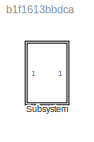
MODEL slx_b1f1613bbdca
KIND model
CONFIG AbsTol = auto
CONFIG EnableMultiTasking = off
CONFIG FixedStep = auto
CONFIG MaxStep = auto
CONFIG MinStep = auto
CONFIG RelTol = 1e-3
CONFIG SampleTimeConstraint = Unconstrained
CONFIG Solver = VariableStepAuto
CONFIG SolverName = VariableStepAuto
CONFIG StartTime = 0.0
CONFIG StopTime = 30
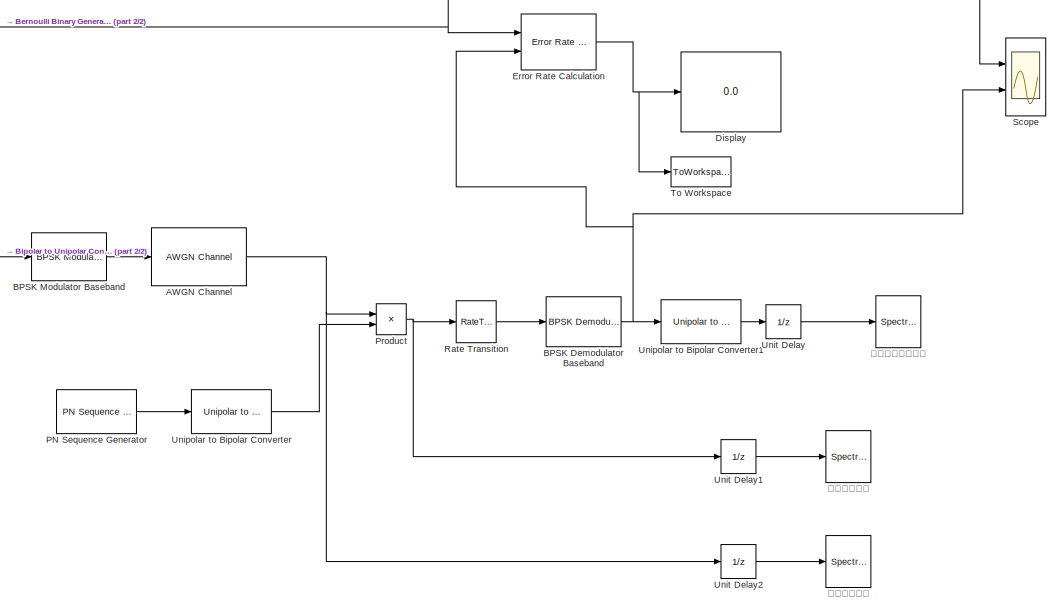
[diagram: Subsystem - part 1/2, right side, full height]
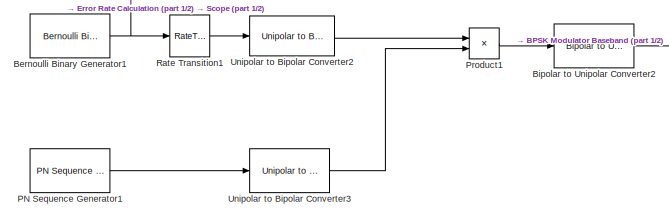
[diagram: Subsystem - part 2/2, middle left region]
BLOCK [SubSystem] Subsystem
  Ports = []
  RequestExecContextInheritance = off
BLOCK [Reference] Subsystem/AWGN Channel  REF=commchan3/AWGN
Channel
  Ports = [1, 1]
  SourceBlock = commchan3/AWGN\nChannel
  SourceProductBaseCode = CM
  SourceProductName = Communications System Toolbox
  SourceType = AWGN Channel
  UserDataPersistent = on
BLOCK [Reference] Subsystem/BPSK Demodulator Baseband  REF=commdigbbndpm3/BPSK
Demodulator
Baseband
  Ports = [1, 1]
  SourceBlock = commdigbbndpm3/BPSK\nDemodulator\nBaseband
  SourceProductBaseCode = CM
  SourceProductName = Communications System Toolbox
  SourceType = BPSK Demodulator Baseband
BLOCK [Reference] Subsystem/BPSK Modulator Baseband  REF=commdigbbndpm3/BPSK
Modulator
Baseband
  Ports = [1, 1]
  SourceBlock = commdigbbndpm3/BPSK\nModulator\nBaseband
  SourceProductBaseCode = CM
  SourceProductName = Communications System Toolbox
  SourceType = BPSK Modulator Baseband
BLOCK [Reference] Subsystem/Bernoulli Binary Generator1  REF=commrandsrc3/Bernoulli Binary
Generator
  Ports = [0, 1]
  SourceBlock = commrandsrc3/Bernoulli Binary\nGenerator
  SourceProductBaseCode = CM
  SourceProductName = Communications System Toolbox
  SourceType = Bernoulli Binary Generator
BLOCK [Reference] Subsystem/Bipolar to Unipolar Converter2  REF=commutil2/Bipolar to
Unipolar
Converter
  Ports = [1, 1]
  SourceBlock = commutil2/Bipolar to\nUnipolar\nConverter
  SourceProductBaseCode = CM
  SourceProductName = Communications System Toolbox
  SourceType = Bipolar to Unipolar Converter
BLOCK [Display] Subsystem/Display
  Decimation = 1
  Ports = [1]
BLOCK [Reference] Subsystem/Error Rate Calculation  REF=commsink2/Error Rate
Calculation
  Ports = [2, 1]
  SourceBlock = commsink2/Error Rate\nCalculation
  SourceProductBaseCode = CM
  SourceProductName = Communications System Toolbox
  SourceType = Error Rate Calculation
BLOCK [Reference] Subsystem/PN Sequence Generator  REF=commseqgen3/PN Sequence
Generator
  Ports = [0, 1]
  SourceBlock = commseqgen3/PN Sequence\nGenerator
  SourceProductBaseCode = CM
  SourceProductName = Communications System Toolbox
  SourceType = PN Sequence Generator
BLOCK [Reference] Subsystem/PN Sequence Generator1  REF=commseqgen3/PN Sequence
Generator
  Ports = [0, 1]
  SourceBlock = commseqgen3/PN Sequence\nGenerator
  SourceProductBaseCode = CM
  SourceProductName = Communications System Toolbox
  SourceType = PN Sequence Generator
BLOCK [Product] Subsystem/Product
  InputSameDT = off
  OutDataTypeStr = Inherit: Inherit via internal rule
  Ports = [2, 1]
  RndMeth = Floor
  SaturateOnIntegerOverflow = off
BLOCK [Product] Subsystem/Product1
  InputSameDT = off
  OutDataTypeStr = Inherit: Inherit via internal rule
  Ports = [2, 1]
  RndMeth = Floor
  SaturateOnIntegerOverflow = off
BLOCK [RateTransition] Subsystem/Rate Transition
  InitialCondition = 1
  OutPortSampleTime = 0.01
BLOCK [RateTransition] Subsystem/Rate Transition1
  Deterministic = off
  OutPortSampleTime = 0.01
BLOCK [Scope] Subsystem/Scope
  Floating = off
  NumInputPorts = 2
  Ports = [2]
  ScopeSpecificationString = Simulink.scopes.TimeScopeBlockCfg('CurrentConfiguration', extmgr.ConfigurationSet(extmgr.Configuration('Core','General UI',true),extmgr.Configuration('Core','Source UI',true),extmgr.Configuration('Sources','WiredSimulink',true),extmgr.Configuration('Visuals','Time Domain',true,'SerializedDisplays',{struct('MinYLimReal','-0.125','MaxYLimReal','1.125','YLabelReal','','MinYLimMag','0.00000','MaxYLimM...<+8327ch>
BLOCK [ToWorkspace] Subsystem/To Workspace
  FixptAsFi = on
  MaxDataPoints = inf
  Ports = [1]
  SampleTime = -1
  Save2DSignal = 2-D array (concatenate along first dimension)
  VariableName = dsss
BLOCK [Reference] Subsystem/Unipolar to Bipolar Converter  REF=commutil2/Unipolar to
Bipolar
Converter
  Ports = [1, 1]
  SourceBlock = commutil2/Unipolar to\nBipolar\nConverter
  SourceProductBaseCode = CM
  SourceProductName = Communications System Toolbox
  SourceType = Unipolar to Bipolar Converter
BLOCK [Reference] Subsystem/Unipolar to Bipolar Converter1  REF=commutil2/Unipolar to
Bipolar
Converter
  Ports = [1, 1]
  SourceBlock = commutil2/Unipolar to\nBipolar\nConverter
  SourceProductBaseCode = CM
  SourceProductName = Communications System Toolbox
  SourceType = Unipolar to Bipolar Converter
BLOCK [Reference] Subsystem/Unipolar to Bipolar Converter2  REF=commutil2/Unipolar to
Bipolar
Converter
  Ports = [1, 1]
  SourceBlock = commutil2/Unipolar to\nBipolar\nConverter
  SourceProductBaseCode = CM
  SourceProductName = Communications System Toolbox
  SourceType = Unipolar to Bipolar Converter
BLOCK [Reference] Subsystem/Unipolar to Bipolar Converter3  REF=commutil2/Unipolar to
Bipolar
Converter
  Ports = [1, 1]
  SourceBlock = commutil2/Unipolar to\nBipolar\nConverter
  SourceProductBaseCode = CM
  SourceProductName = Communications System Toolbox
  SourceType = Unipolar to Bipolar Converter
BLOCK [UnitDelay] Subsystem/Unit Delay
  InputProcessing = Elements as channels (sample based)
  SampleTime = 1/8000
BLOCK [UnitDelay] Subsystem/Unit Delay1
  InputProcessing = Elements as channels (sample based)
  SampleTime = 1/8000
BLOCK [UnitDelay] Subsystem/Unit Delay2
  InputProcessing = Elements as channels (sample based)
  SampleTime = 1/8000
BLOCK [SpectrumAnalyzer] Subsystem/信道信号频谱
  Ports = [1]
  ScopeSpecificationString = spbscopes.SpectrumAnalyzerBlockCfg('CurrentConfiguration', extmgr.ConfigurationSet(extmgr.Configuration('Core','General UI',true),extmgr.Configuration('Core','Source UI',true),extmgr.Configuration('Sources','WiredSimulink',true),extmgr.Configuration('Visuals','Spectrum',true,'AxesProperties',struct('Color',{[0 0 0],[0 0 0]},'XColor',{[0.686274509803922 0.686274509803922 0.686274509803922],[0.68627...<+1822ch>
BLOCK [SpectrumAnalyzer] Subsystem/解扩信号频谱
  Ports = [1]
  ScopeSpecificationString = spbscopes.SpectrumAnalyzerBlockCfg('CurrentConfiguration', extmgr.ConfigurationSet(extmgr.Configuration('Core','General UI',true),extmgr.Configuration('Core','Source UI',true),extmgr.Configuration('Sources','WiredSimulink',true),extmgr.Configuration('Visuals','Spectrum',true,'AxesProperties',struct('Color',{[0 0 0],[0 0 0]},'XColor',{[0.686274509803922 0.686274509803922 0.686274509803922],[0.68627...<+1855ch>
BLOCK [SpectrumAnalyzer] Subsystem/解调数据输出频谱
  Ports = [1]
  ScopeSpecificationString = spbscopes.SpectrumAnalyzerBlockCfg('CurrentConfiguration', extmgr.ConfigurationSet(extmgr.Configuration('Core','General UI',true),extmgr.Configuration('Core','Source UI',true),extmgr.Configuration('Sources','WiredSimulink',true),extmgr.Configuration('Visuals','Spectrum',true,'AxesProperties',struct('Color',{[0 0 0],[0 0 0]},'XColor',{[0.686274509803922 0.686274509803922 0.686274509803922],[0.68627...<+1928ch>
NET Subsystem/AWGN Channel:1 -> Subsystem/Product:1, Subsystem/Unit Delay2:1
NET Subsystem/BPSK Demodulator Baseband:1 -> Subsystem/Error Rate Calculation:2, Subsystem/Scope:2, Subsystem/Unipolar to Bipolar Converter1:1
LINE Subsystem/BPSK Modulator Baseband:1 -> Subsystem/AWGN Channel:1
NET Subsystem/Bernoulli Binary Generator1:1 -> Subsystem/Error Rate Calculation:1, Subsystem/Rate Transition1:1, Subsystem/Scope:1
LINE Subsystem/Bipolar to Unipolar Converter2:1 -> Subsystem/BPSK Modulator Baseband:1
NET Subsystem/Error Rate Calculation:1 -> Subsystem/Display:1, Subsystem/To Workspace:1
LINE Subsystem/PN Sequence Generator1:1 -> Subsystem/Unipolar to Bipolar Converter3:1
LINE Subsystem/PN Sequence Generator:1 -> Subsystem/Unipolar to Bipolar Converter:1
LINE Subsystem/Product1:1 -> Subsystem/Bipolar to Unipolar Converter2:1
NET Subsystem/Product:1 -> Subsystem/Rate Transition:1, Subsystem/Unit Delay1:1
LINE Subsystem/Rate Transition1:1 -> Subsystem/Unipolar to Bipolar Converter2:1
LINE Subsystem/Rate Transition:1 -> Subsystem/BPSK Demodulator Baseband:1
LINE Subsystem/Unipolar to Bipolar Converter1:1 -> Subsystem/Unit Delay:1
LINE Subsystem/Unipolar to Bipolar Converter2:1 -> Subsystem/Product1:1
LINE Subsystem/Unipolar to Bipolar Converter3:1 -> Subsystem/Product1:2
LINE Subsystem/Unipolar to Bipolar Converter:1 -> Subsystem/Product:2
LINE Subsystem/Unit Delay1:1 -> Subsystem/解扩信号频谱:1
LINE Subsystem/Unit Delay2:1 -> Subsystem/信道信号频谱:1
LINE Subsystem/Unit Delay:1 -> Subsystem/解调数据输出频谱:1
note: NET lines group one-source signal fan-out (src -> all destinations, sorted); 1:1 wires keep LINE
